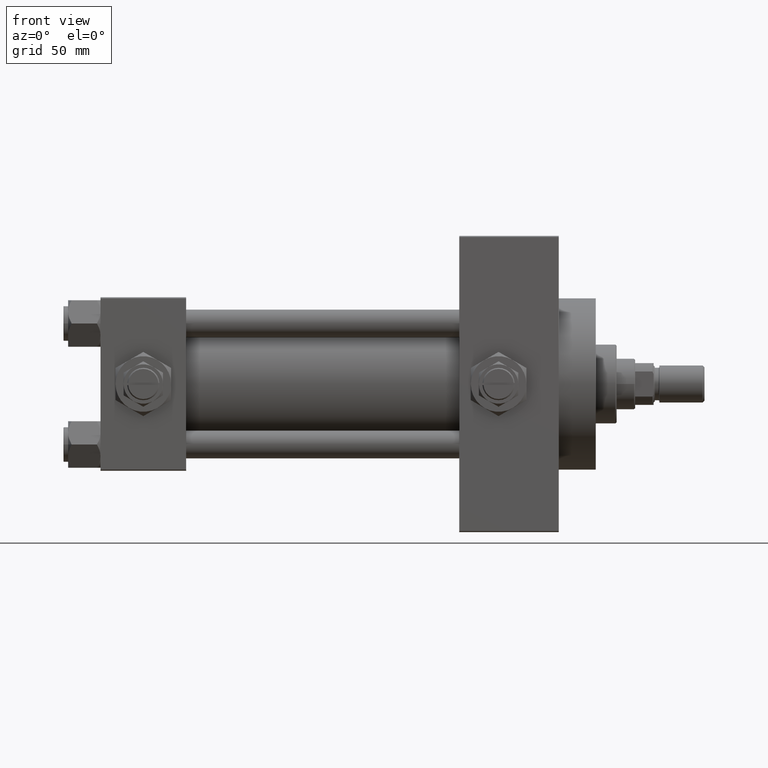
[diagram: clean part render]
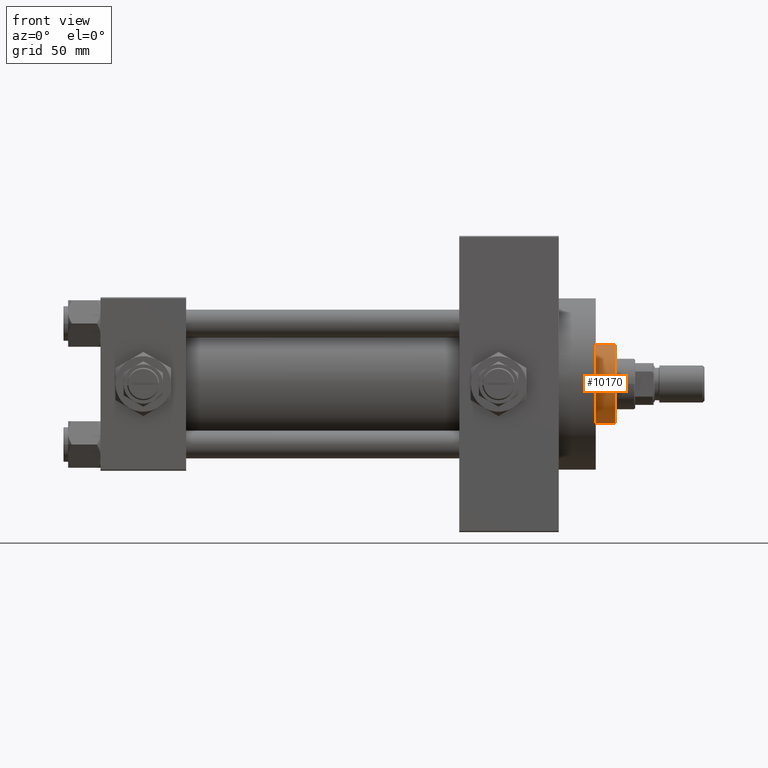
[diagram: same view with one face highlighted and labeled with its STEP entity id]
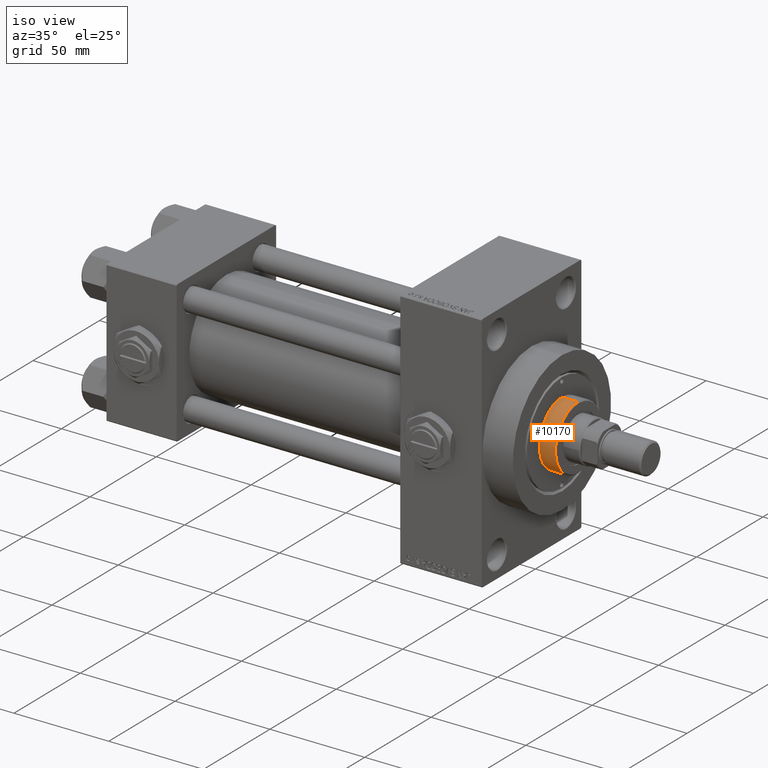
[diagram: same view with one face highlighted and labeled with its STEP entity id]
A machine part, front view. The second image highlights one B-rep face of the part: STEP entity #10170.
A second angle (iso view) of the same face is appended — the face is thin or edge-on in the first view.
In plain terms, the highlighted cylindrical surface (partial cylindrical patch) has radius 17 mm, axis along (-1, 0, 0).
Its self-contained STEP definition (entity closure, byte-faithful):
#151 = VERTEX_POINT ( 'NONE', #9005 ) ;
#569 = DIRECTION ( 'NONE',  ( 0.000000000000000000, 0.000000000000000000, 1.000000000000000000 ) ) ;
#1056 = LINE ( 'NONE', #39933, #21035 ) ;
#5334 = LINE ( 'NONE', #28587, #32449 ) ;
#6389 = EDGE_CURVE ( 'NONE', #151, #6739, #5334, .T. ) ;
#6739 = VERTEX_POINT ( 'NONE', #41137 ) ;
#6894 = DIRECTION ( 'NONE',  ( 0.000000000000000000, 0.000000000000000000, -1.000000000000000000 ) ) ;
#7058 = CARTESIAN_POINT ( 'NONE',  ( 0.000000000000000000, 0.000000000000000000, 52.25999999999999801 ) ) ;
#7340 = EDGE_LOOP ( 'NONE', ( #12650, #49931, #35763, #40210 ) ) ;
#8132 = DIRECTION ( 'NONE',  ( 1.000000000000000000, 0.000000000000000000, 0.000000000000000000 ) ) ;
#9005 = CARTESIAN_POINT ( 'NONE',  ( -17.00000000000000000, 0.000000000000000000, 51.76000000000000512 ) ) ;
#10170 = ADVANCED_FACE ( 'NONE', ( #34351 ), #41669, .T. ) ;
#10940 = DIRECTION ( 'NONE',  ( 1.000000000000000000, 0.000000000000000000, 0.000000000000000000 ) ) ;
#11597 = AXIS2_PLACEMENT_3D ( 'NONE', #20249, #569, #8132 ) ;
#12650 = ORIENTED_EDGE ( 'NONE', *, *, #38201, .T. ) ;
#12921 = DIRECTION ( 'NONE',  ( -0.000000000000000000, -0.000000000000000000, -1.000000000000000000 ) ) ;
#15144 = DIRECTION ( 'NONE',  ( -1.000000000000000000, 0.000000000000000000, 0.000000000000000000 ) ) ;
#17020 = AXIS2_PLACEMENT_3D ( 'NONE', #7058, #41904, #15144 ) ;
#20195 = AXIS2_PLACEMENT_3D ( 'NONE', #45298, #6894, #10940 ) ;
#20249 = CARTESIAN_POINT ( 'NONE',  ( 0.000000000000000000, 0.000000000000000000, 43.25999999999999801 ) ) ;
#20258 = EDGE_CURVE ( 'NONE', #25638, #6739, #46294, .T. ) ;
#21035 = VECTOR ( 'NONE', #25031, 1000.000000000000000 ) ;
#25031 = DIRECTION ( 'NONE',  ( -0.000000000000000000, -0.000000000000000000, -1.000000000000000000 ) ) ;
#25638 = VERTEX_POINT ( 'NONE', #30950 ) ;
#28587 = CARTESIAN_POINT ( 'NONE',  ( -17.00000000000000000, 0.000000000000000000, 52.25999999999999801 ) ) ;
#30950 = CARTESIAN_POINT ( 'NONE',  ( 17.00000000000000000, 2.081899558550500280E-15, 43.25999999999999801 ) ) ;
#32449 = VECTOR ( 'NONE', #12921, 1000.000000000000000 ) ;
#32736 = VERTEX_POINT ( 'NONE', #47203 ) ;
#34351 = FACE_OUTER_BOUND ( 'NONE', #7340, .T. ) ;
#35763 = ORIENTED_EDGE ( 'NONE', *, *, #20258, .T. ) ;
#38201 = EDGE_CURVE ( 'NONE', #151, #32736, #40348, .T. ) ;
#38408 = EDGE_CURVE ( 'NONE', #32736, #25638, #1056, .T. ) ;
#39933 = CARTESIAN_POINT ( 'NONE',  ( 17.00000000000000000, 2.081899558550500280E-15, 52.25999999999999801 ) ) ;
#40210 = ORIENTED_EDGE ( 'NONE', *, *, #6389, .F. ) ;
#40348 = CIRCLE ( 'NONE', #20195, 17.00000000000000000 ) ;
#41137 = CARTESIAN_POINT ( 'NONE',  ( -17.00000000000000000, 0.000000000000000000, 43.25999999999999801 ) ) ;
#41669 = CYLINDRICAL_SURFACE ( 'NONE', #17020, 17.00000000000000000 ) ;
#41904 = DIRECTION ( 'NONE',  ( -0.000000000000000000, -0.000000000000000000, -1.000000000000000000 ) ) ;
#45298 = CARTESIAN_POINT ( 'NONE',  ( 0.000000000000000000, 0.000000000000000000, 51.76000000000000512 ) ) ;
#46294 = CIRCLE ( 'NONE', #11597, 17.00000000000000000 ) ;
#47203 = CARTESIAN_POINT ( 'NONE',  ( 17.00000000000000000, 2.081899558550500280E-15, 51.76000000000000512 ) ) ;
#49931 = ORIENTED_EDGE ( 'NONE', *, *, #38408, .T. ) ;